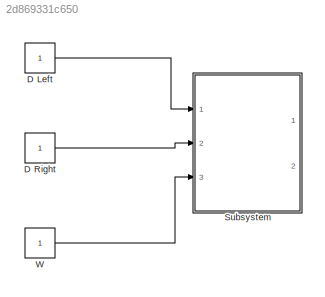
MODEL slx_2d869331c650
KIND model
BLOCK [Constant] D Left
BLOCK [Constant] D Right
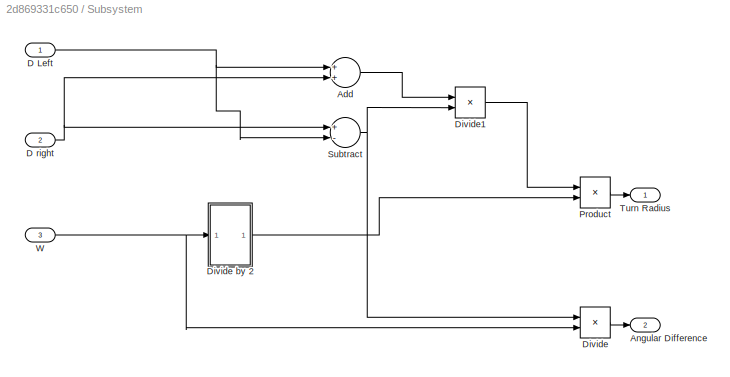
BLOCK [SubSystem] Subsystem
  FunctionWithSeparateData = off
  MaskHideContents = off
  MinAlgLoopOccurrences = off
  Opaque = off
  Ports = [3, 2]
  PropExecContextOutsideSubsystem = off
  RTWSystemCode = Auto
  RequestExecContextInheritance = off
BLOCK [Sum] Subsystem/Add
  InputSameDT = off
  OutDataTypeStr = Inherit: Inherit via internal rule
  Ports = [2, 1]
  SaturateOnIntegerOverflow = off
BLOCK [Outport] Subsystem/Angular Difference
  IconDisplay = Port number
  Port = 2
BLOCK [Inport] Subsystem/D Left
  IconDisplay = Port number
BLOCK [Inport] Subsystem/D right
  IconDisplay = Port number
  Port = 2
BLOCK [Product] Subsystem/Divide
  InputSameDT = off
  Inputs = */
  OutDataTypeStr = Inherit: Inherit via internal rule
  Ports = [2, 1]
  RndMeth = Floor
  SaturateOnIntegerOverflow = off
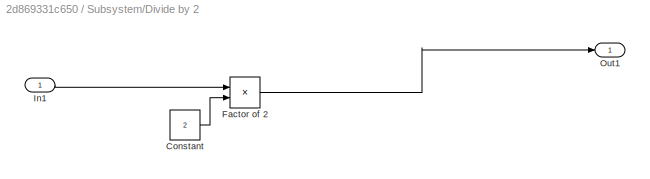
BLOCK [SubSystem] Subsystem/Divide by 2
  FunctionWithSeparateData = off
  MaskHideContents = off
  MinAlgLoopOccurrences = off
  Opaque = off
  Ports = [1, 1]
  PropExecContextOutsideSubsystem = off
  RTWSystemCode = Auto
  RequestExecContextInheritance = off
BLOCK [Constant] Subsystem/Divide by 2/Constant
  Value = 2
BLOCK [Product] Subsystem/Divide by 2/Factor of 2
  InputSameDT = off
  Inputs = */
  OutDataTypeStr = Inherit: Inherit via internal rule
  Ports = [2, 1]
  RndMeth = Floor
  SaturateOnIntegerOverflow = off
BLOCK [Inport] Subsystem/Divide by 2/In1
  IconDisplay = Port number
BLOCK [Outport] Subsystem/Divide by 2/Out1
  IconDisplay = Port number
BLOCK [Product] Subsystem/Divide1
  InputSameDT = off
  Inputs = */
  OutDataTypeStr = Inherit: Inherit via internal rule
  Ports = [2, 1]
  RndMeth = Floor
  SaturateOnIntegerOverflow = off
BLOCK [Product] Subsystem/Product
  InputSameDT = off
  OutDataTypeStr = Inherit: Inherit via internal rule
  Ports = [2, 1]
  RndMeth = Floor
  SaturateOnIntegerOverflow = off
BLOCK [Sum] Subsystem/Subtract
  InputSameDT = off
  Inputs = +-
  OutDataTypeStr = Inherit: Inherit via internal rule
  Ports = [2, 1]
  SaturateOnIntegerOverflow = off
BLOCK [Outport] Subsystem/Turn Radius
  IconDisplay = Port number
BLOCK [Inport] Subsystem/W
  IconDisplay = Port number
  Port = 3
BLOCK [Constant] W
LINE D Left:1 -> Subsystem:1
LINE D Right:1 -> Subsystem:2
LINE Subsystem/Add:1 -> Subsystem/Divide1:1
NET Subsystem/D Left:1 -> Subsystem/Add:1, Subsystem/Subtract:2
NET Subsystem/D right:1 -> Subsystem/Add:2, Subsystem/Subtract:1
LINE Subsystem/Divide by 2/Constant:1 -> Subsystem/Divide by 2/Factor of 2:2
LINE Subsystem/Divide by 2/Factor of 2:1 -> Subsystem/Divide by 2/Out1:1
LINE Subsystem/Divide by 2/In1:1 -> Subsystem/Divide by 2/Factor of 2:1
LINE Subsystem/Divide by 2:1 -> Subsystem/Product:2
LINE Subsystem/Divide1:1 -> Subsystem/Product:1
LINE Subsystem/Divide:1 -> Subsystem/Angular Difference:1
LINE Subsystem/Product:1 -> Subsystem/Turn Radius:1
NET Subsystem/Subtract:1 -> Subsystem/Divide1:2, Subsystem/Divide:1
NET Subsystem/W:1 -> Subsystem/Divide by 2:1, Subsystem/Divide:2
LINE W:1 -> Subsystem:3
note: NET lines group one-source signal fan-out (src -> all destinations, sorted); 1:1 wires keep LINE
